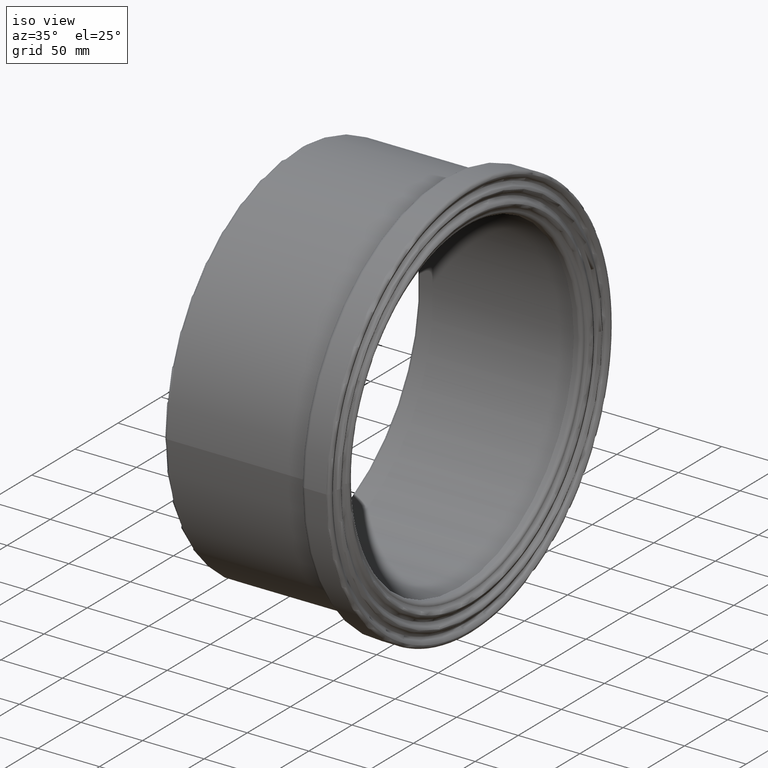
[diagram: clean part render]
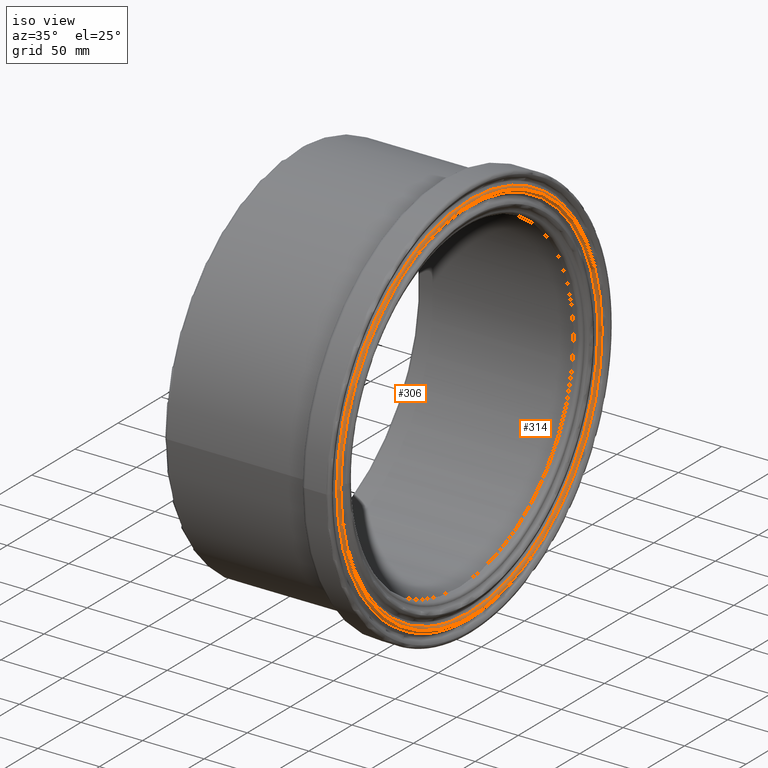
[diagram: same view with one multi-face feature highlighted, each face labeled with its STEP entity id]
A machine part, iso view. The highlighted faces form ONE feature: a constant-radius fillet chain: 2 tangent blend faces with common blend radius 2.8 mm. The faces share edges in the B-rep.
Their STEP definitions:
[1] entity #306 (Torus):
#30=B_SPLINE_CURVE_WITH_KNOTS('',3,(#1836,#1837,#1838,#1839,#1840,#1841,
#1842,#1843,#1844,#1845,#1846,#1847,#1848,#1849,#1850,#1851,#1852,#1853,
#1854,#1855,#1856,#1857,#1858,#1859,#1860,#1861,#1862,#1863,#1864,#1865,
#1866,#1867,#1868,#1869,#1870,#1871,#1872,#1873,#1874,#1875,#1876,#1877,
#1878,#1879,#1880,#1881,#1882,#1883,#1884,#1885,#1886,#1887,#1888,#1889,
#1890,#1891,#1892,#1893,#1894,#1895,#1896,#1897,#1898),.UNSPECIFIED.,.T.,
 .F.,(4,1,1,1,1,1,1,1,1,1,1,1,1,1,1,1,1,1,1,1,1,1,1,1,1,1,1,1,1,1,1,1,1,
1,1,1,1,1,1,1,1,1,1,1,1,1,1,1,1,1,1,1,1,1,1,1,1,1,1,1,4),(-48.8331298808283,
-48.3971197926066,-47.5250996161633,-47.0890895279416,-45.3450491750549,
-43.6010088221681,-42.2929785575031,-41.9659709913368,-41.8569684692814,
-38.3688877635079,-36.6248474106212,-35.9708322782887,-35.3168171459562,
-34.8808070577345,-32.5554199205522,-30.2300327833699,-28.4859924304832,
-27.323298861892,-25.5792585090053,-24.4165649404141,-23.253871371823,-21.5098310189363,
-20.9284842346407,-19.7657906660495,-19.0391071856801,-18.6030970974584,
-15.6963631759805,-13.9523228230938,-11.6269356859115,-10.7549155094681,
-9.3015485487292,-8.72020176443362,-6.9761614115469,-5.81346784295575,-2.3253871371823,
-1.16269356859115,1.16269356859115,2.3253871371823,4.6507742743646,6.9761614115469,
11.6269356859115,12.7896292545027,13.9523228230938,16.2777099602761,17.4404035288673,
18.6030970974584,20.9284842346407,23.253871371823,25.5792585090053,29.0673392147787,
30.2300327833699,31.7802908748248,34.8808070577345,36.6248474106212,38.3688877635079,
40.1129281163947,41.8569684692814,43.6010088221681,45.3450491750549,47.0890895279416,
48.8331298808283),.UNSPECIFIED.);
#50=FACE_BOUND('',#111,.T.);
#75=FACE_OUTER_BOUND('',#110,.T.);
#110=EDGE_LOOP('',(#249));
#111=EDGE_LOOP('',(#250));
#149=CIRCLE('',#342,151.55);
#174=VERTEX_POINT('',#1834);
#175=VERTEX_POINT('',#1900);
#204=EDGE_CURVE('',#174,#174,#30,.T.);
#205=EDGE_CURVE('',#175,#175,#149,.T.);
#249=ORIENTED_EDGE('',*,*,#205,.F.);
#250=ORIENTED_EDGE('',*,*,#204,.F.);
#288=TOROIDAL_SURFACE('',#341,151.2,2.8);
#306=ADVANCED_FACE('',(#75,#50),#288,.T.);
#341=AXIS2_PLACEMENT_3D('',#1899,#404,#405);
#342=AXIS2_PLACEMENT_3D('',#1901,#406,#407);
#404=DIRECTION('center_axis',(-1.,0.,0.));
#405=DIRECTION('ref_axis',(0.,-1.,-6.12323399573677E-17));
#406=DIRECTION('center_axis',(1.,0.,0.));
#407=DIRECTION('ref_axis',(0.,1.,6.12323399573677E-17));
#1834=CARTESIAN_POINT('',(140.285980561691,-153.789903497329,0.12485113096353));
#1836=CARTESIAN_POINT('Ctrl Pts',(140.285980561691,-153.790032869069,0.128230636270655));
#1837=CARTESIAN_POINT('Ctrl Pts',(140.285980561691,-153.78878626266,1.55995568260425));
#1838=CARTESIAN_POINT('Ctrl Pts',(140.285980561691,-153.725017197412,5.85487721374721));
#1839=CARTESIAN_POINT('Ctrl Pts',(140.285980561691,-153.398669786454,11.60993103641));
#1840=CARTESIAN_POINT('Ctrl Pts',(140.285980561691,-152.402129337626,21.6459499896712));
#1841=CARTESIAN_POINT('Ctrl Pts',(140.285980561691,-150.209215102565,34.4828807381824));
#1842=CARTESIAN_POINT('Ctrl Pts',(140.285980561691,-145.794112598124,49.7109548890568));
#1843=CARTESIAN_POINT('Ctrl Pts',(140.285980561691,-141.690156647611,59.997243092402));
#1844=CARTESIAN_POINT('Ctrl Pts',(140.285980561691,-139.279565473801,65.2230793858889));
#1845=CARTESIAN_POINT('Ctrl Pts',(140.285980561691,-133.70458059635,76.898449469074));
#1846=CARTESIAN_POINT('Ctrl Pts',(140.285980561691,-124.16935245826,92.0111212729027));
#1847=CARTESIAN_POINT('Ctrl Pts',(140.285980561691,-111.252482556938,106.410800668203));
#1848=CARTESIAN_POINT('Ctrl Pts',(140.285980561691,-104.003687481247,113.352904307182));
#1849=CARTESIAN_POINT('Ctrl Pts',(140.285980561691,-99.6708423552335,117.160100758107));
#1850=CARTESIAN_POINT('Ctrl Pts',(140.285980561691,-90.9467166824033,124.312867440558));
#1851=CARTESIAN_POINT('Ctrl Pts',(140.285980561691,-76.932325118488,133.824615806391));
#1852=CARTESIAN_POINT('Ctrl Pts',(140.285980561691,-57.9903730520915,142.910979450752));
#1853=CARTESIAN_POINT('Ctrl Pts',(140.285980561691,-41.5372031098528,148.313260661025));
#1854=CARTESIAN_POINT('Ctrl Pts',(140.285980561691,-26.5051116149595,151.72102457137));
#1855=CARTESIAN_POINT('Ctrl Pts',(140.285980561691,-13.1564552910579,153.45248302182));
#1856=CARTESIAN_POINT('Ctrl Pts',(140.285980561691,0.177378198502902,153.931558067019));
#1857=CARTESIAN_POINT('Ctrl Pts',(140.285980561691,13.6060913563931,153.417199342379));
#1858=CARTESIAN_POINT('Ctrl Pts',(140.285980561691,25.0744862608331,151.890464420584));
#1859=CARTESIAN_POINT('Ctrl Pts',(140.285980561691,36.3657837727631,149.515122710635));
#1860=CARTESIAN_POINT('Ctrl Pts',(140.285980561691,44.2478961396712,147.387497255366));
#1861=CARTESIAN_POINT('Ctrl Pts',(140.285980561691,51.4875046093276,144.953124304982));
#1862=CARTESIAN_POINT('Ctrl Pts',(140.285980561691,63.9759168714091,140.234618520262));
#1863=CARTESIAN_POINT('Ctrl Pts',(140.285980561691,79.0764704269614,132.596146027678));
#1864=CARTESIAN_POINT('Ctrl Pts',(140.285980561691,97.8991927168441,119.173482582442));
#1865=CARTESIAN_POINT('Ctrl Pts',(140.285980561691,109.769656657097,108.123833145999));
#1866=CARTESIAN_POINT('Ctrl Pts',(140.285980561691,119.904348319621,96.5400583785807));
#1867=CARTESIAN_POINT('Ctrl Pts',(140.285980561691,125.678850341421,88.8385799744515));
#1868=CARTESIAN_POINT('Ctrl Pts',(140.285980561691,132.512129816817,78.3574157002596));
#1869=CARTESIAN_POINT('Ctrl Pts',(140.285980561691,138.047504333441,68.2902625774692));
#1870=CARTESIAN_POINT('Ctrl Pts',(140.285980561691,146.420230617934,49.0148704074118));
#1871=CARTESIAN_POINT('Ctrl Pts',(140.285980561691,151.375213096368,30.4557028337687));
#1872=CARTESIAN_POINT('Ctrl Pts',(140.285980561691,153.933189939119,7.64750781255766));
#1873=CARTESIAN_POINT('Ctrl Pts',(140.285980561691,153.929353309494,-7.63968224149313));
#1874=CARTESIAN_POINT('Ctrl Pts',(140.285980561691,151.798787741713,-26.7426186863813));
#1875=CARTESIAN_POINT('Ctrl Pts',(140.285980561691,147.467416790075,-45.5912672869851));
#1876=CARTESIAN_POINT('Ctrl Pts',(140.285980561691,136.320571484894,-74.0498976541371));
#1877=CARTESIAN_POINT('Ctrl Pts',(140.285980561691,120.90385653703,-96.6836898654442));
#1878=CARTESIAN_POINT('Ctrl Pts',(140.285980561691,104.697704284632,-112.8302781223));
#1879=CARTESIAN_POINT('Ctrl Pts',(140.285980561691,93.0683377561068,-122.867581159138));
#1880=CARTESIAN_POINT('Ctrl Pts',(140.285980561691,80.2902418749382,-131.557973634984));
#1881=CARTESIAN_POINT('Ctrl Pts',(140.285980561691,66.6995422484529,-138.732524451067));
#1882=CARTESIAN_POINT('Ctrl Pts',(140.285980561691,52.7245384427721,-144.819470134023));
#1883=CARTESIAN_POINT('Ctrl Pts',(140.285980561691,34.3008384198665,-150.519156182648));
#1884=CARTESIAN_POINT('Ctrl Pts',(140.285980561691,11.3928976875798,-153.933928716728));
#1885=CARTESIAN_POINT('Ctrl Pts',(140.285980561691,-15.3447874856942,-153.938175192372));
#1886=CARTESIAN_POINT('Ctrl Pts',(140.285980561691,-38.2955646810749,-149.59577864632));
#1887=CARTESIAN_POINT('Ctrl Pts',(140.285980561692,-57.5210657416421,-142.831208504604));
#1888=CARTESIAN_POINT('Ctrl Pts',(140.285980561691,-74.9641372830207,-134.973289624955));
#1889=CARTESIAN_POINT('Ctrl Pts',(140.285980561691,-92.9039928918147,-123.361657038343));
#1890=CARTESIAN_POINT('Ctrl Pts',(140.285980561691,-109.030870761056,-108.909215964235));
#1891=CARTESIAN_POINT('Ctrl Pts',(140.285980561691,-120.532414711667,-96.0409491017326));
#1892=CARTESIAN_POINT('Ctrl Pts',(140.285980561691,-130.581321617401,-81.8546528218272));
#1893=CARTESIAN_POINT('Ctrl Pts',(140.285980561691,-138.918664219418,-66.7193389617188));
#1894=CARTESIAN_POINT('Ctrl Pts',(140.285980561691,-145.483662611211,-50.8396604137697));
#1895=CARTESIAN_POINT('Ctrl Pts',(140.285980561691,-150.285517258246,-34.1610797014645));
#1896=CARTESIAN_POINT('Ctrl Pts',(140.285980561691,-153.16468018843,-17.0551750702155));
#1897=CARTESIAN_POINT('Ctrl Pts',(140.285980561691,-153.795019294706,-5.59866954906367));
#1898=CARTESIAN_POINT('Ctrl Pts',(140.285980561691,-153.790032869069,0.128230636270655));
#1899=CARTESIAN_POINT('Origin',(139.221961123382,0.,0.));
#1900=CARTESIAN_POINT('',(142.,-151.55,-2.78392833616172E-14));
#1901=CARTESIAN_POINT('Origin',(142.,0.,0.));
[2] entity #314 (Torus):
#33=B_SPLINE_CURVE_WITH_KNOTS('',3,(#2684,#2685,#2686,#2687,#2688,#2689,
#2690,#2691,#2692,#2693,#2694,#2695,#2696,#2697,#2698,#2699,#2700,#2701,
#2702,#2703,#2704,#2705,#2706,#2707,#2708,#2709,#2710,#2711,#2712,#2713,
#2714,#2715,#2716,#2717,#2718,#2719,#2720,#2721,#2722,#2723,#2724,#2725,
#2726,#2727,#2728,#2729,#2730,#2731,#2732,#2733,#2734,#2735,#2736,#2737,
#2738,#2739,#2740,#2741,#2742,#2743,#2744,#2745,#2746,#2747,#2748,#2749,
#2750,#2751),.UNSPECIFIED.,.T.,.F.,(4,1,1,1,1,1,1,1,1,1,1,1,1,1,1,1,1,1,
1,1,1,1,1,1,1,1,1,1,1,1,1,1,1,1,1,1,1,1,1,1,1,1,1,1,1,1,1,1,1,1,1,1,1,1,
1,1,1,1,1,1,1,1,1,1,1,4),(45.7101747594697,47.3426810008793,48.975187242289,
50.6076934836986,52.2401997251082,55.5052122079275,57.1377184493371,58.7702246907468,
60.9468996792929,63.1235746678391,67.4769246449315,68.5652621392045,69.6535996334776,
71.8302746220238,73.2813912810546,74.7325079400854,76.1836245991162,78.3602995876623,
79.4486370819354,80.5369745762085,82.7136495647547,84.8903245533009,85.978662047574,
88.1553370361201,89.2436745303932,92.2366026396442,92.5086870132125,93.5970245074856,
95.7736994960318,96.3178682431683,96.7259948035207,97.1341213638731,97.9503744845779,
101.215386967397,102.745861568719,104.480399450216,104.684462730393,105.296652570921,
107.745411933036,109.377918174445,111.010424415855,111.418550976207,112.642930657265,
114.275436898674,114.887626739203,115.499816579731,117.540449381494,117.812533755062,
118.628786875767,119.445039996471,120.805461864313,121.077546237881,121.893799358586,
124.070474347132,125.294854028189,126.519233709247,126.723296989423,127.335486829951,
128.967993071361,130.600499312771,131.008625873123,132.23300555418,133.86551179559,
135.498018036999,135.906144597352,137.130524278409),.UNSPECIFIED.);
#56=FACE_BOUND('',#125,.T.);
#83=FACE_OUTER_BOUND('',#124,.T.);
#124=EDGE_LOOP('',(#269));
#125=EDGE_LOOP('',(#270));
#149=CIRCLE('',#342,151.55);
#175=VERTEX_POINT('',#1900);
#183=VERTEX_POINT('',#2682);
#205=EDGE_CURVE('',#175,#175,#149,.T.);
#215=EDGE_CURVE('',#183,#183,#33,.T.);
#269=ORIENTED_EDGE('',*,*,#215,.F.);
#270=ORIENTED_EDGE('',*,*,#205,.T.);
#291=TOROIDAL_SURFACE('',#355,151.55,2.8);
#314=ADVANCED_FACE('',(#83,#56),#291,.T.);
#342=AXIS2_PLACEMENT_3D('',#1901,#406,#407);
#355=AXIS2_PLACEMENT_3D('',#2752,#432,#433);
#406=DIRECTION('center_axis',(1.,0.,0.));
#407=DIRECTION('ref_axis',(0.,1.,6.12323399573677E-17));
#432=DIRECTION('center_axis',(-1.,0.,0.));
#433=DIRECTION('ref_axis',(0.,0.,1.));
#1900=CARTESIAN_POINT('',(142.,-151.55,-2.78392833616172E-14));
#1901=CARTESIAN_POINT('Origin',(142.,0.,0.));
#2682=CARTESIAN_POINT('',(140.275,-148.964535083942,-0.120933756090324));
#2684=CARTESIAN_POINT('Ctrl Pts',(140.275,-148.964568837677,-0.122809859819948));
#2685=CARTESIAN_POINT('Ctrl Pts',(140.275000000001,-148.959557337798,-5.6737490385498));
#2686=CARTESIAN_POINT('Ctrl Pts',(140.275,-148.329154383102,-16.8156366137907));
#2687=CARTESIAN_POINT('Ctrl Pts',(140.275,-145.495542150607,-33.4109901602212));
#2688=CARTESIAN_POINT('Ctrl Pts',(140.275,-140.83209741711,-49.4763490972255));
#2689=CARTESIAN_POINT('Ctrl Pts',(140.275,-132.332258570456,-69.9861467209144));
#2690=CARTESIAN_POINT('Ctrl Pts',(140.275,-120.272677425517,-89.1363754874114));
#2691=CARTESIAN_POINT('Ctrl Pts',(140.275,-105.448641893171,-105.645666224272));
#2692=CARTESIAN_POINT('Ctrl Pts',(140.275,-91.5834666346418,-118.04803833079));
#2693=CARTESIAN_POINT('Ctrl Pts',(140.275,-74.5137704519196,-129.618103905606));
#2694=CARTESIAN_POINT('Ctrl Pts',(140.275000000001,-47.8418304201663,-142.447293216622));
#2695=CARTESIAN_POINT('Ctrl Pts',(140.275,-21.9781446091969,-148.331383081598));
#2696=CARTESIAN_POINT('Ctrl Pts',(140.275,0.17569125471072,-149.093965084313));
#2697=CARTESIAN_POINT('Ctrl Pts',(140.275,15.0302323383013,-148.542430879075));
#2698=CARTESIAN_POINT('Ctrl Pts',(140.275,31.0831496305879,-146.084064521674));
#2699=CARTESIAN_POINT('Ctrl Pts',(140.275,47.761113360919,-141.360118065136));
#2700=CARTESIAN_POINT('Ctrl Pts',(140.275,61.5246078011976,-135.934057709607));
#2701=CARTESIAN_POINT('Ctrl Pts',(140.275,77.0176859108486,-127.975890683011));
#2702=CARTESIAN_POINT('Ctrl Pts',(140.275,90.3891600101355,-118.812994552106));
#2703=CARTESIAN_POINT('Ctrl Pts',(140.275,101.589423818671,-109.136520092809));
#2704=CARTESIAN_POINT('Ctrl Pts',(140.275,112.053079344598,-98.6499394785924));
#2705=CARTESIAN_POINT('Ctrl Pts',(140.275,123.715805567051,-83.9797310582637));
#2706=CARTESIAN_POINT('Ctrl Pts',(140.275,132.983182507665,-67.8362747583498));
#2707=CARTESIAN_POINT('Ctrl Pts',(140.275,140.346631784791,-50.8810507425562));
#2708=CARTESIAN_POINT('Ctrl Pts',(140.275,144.712325337597,-36.678575124272));
#2709=CARTESIAN_POINT('Ctrl Pts',(140.275,148.646430981357,-15.7766080576259));
#2710=CARTESIAN_POINT('Ctrl Pts',(140.275,149.348209020114,-0.903387832956897));
#2711=CARTESIAN_POINT('Ctrl Pts',(140.275,148.376443378545,13.8658411688273));
#2712=CARTESIAN_POINT('Ctrl Pts',(140.275,147.027645229315,25.9176733532363));
#2713=CARTESIAN_POINT('Ctrl Pts',(140.275,144.108954106179,38.6720712557812));
#2714=CARTESIAN_POINT('Ctrl Pts',(140.275,140.766206005444,48.8178903782974));
#2715=CARTESIAN_POINT('Ctrl Pts',(140.275,139.175554855029,53.166362840481));
#2716=CARTESIAN_POINT('Ctrl Pts',(140.275,137.122667310907,58.3128316072751));
#2717=CARTESIAN_POINT('Ctrl Pts',(140.275,130.900895724389,72.2548457582338));
#2718=CARTESIAN_POINT('Ctrl Pts',(140.275,120.561387012157,88.6966642748857));
#2719=CARTESIAN_POINT('Ctrl Pts',(140.275,105.768142706052,105.334485658711));
#2720=CARTESIAN_POINT('Ctrl Pts',(140.275,97.0023974900637,113.229604497792));
#2721=CARTESIAN_POINT('Ctrl Pts',(140.275,90.1260579630258,118.633966514305));
#2722=CARTESIAN_POINT('Ctrl Pts',(140.275,81.1526772744691,125.291454796195));
#2723=CARTESIAN_POINT('Ctrl Pts',(140.275,67.2326753318649,133.479869437641));
#2724=CARTESIAN_POINT('Ctrl Pts',(140.275,49.3142843394213,140.893228739321));
#2725=CARTESIAN_POINT('Ctrl Pts',(140.275,37.1976791375266,144.38913453537));
#2726=CARTESIAN_POINT('Ctrl Pts',(140.275,26.2684626927645,146.716695829714));
#2727=CARTESIAN_POINT('Ctrl Pts',(140.275,15.1988957290237,148.430318012904));
#2728=CARTESIAN_POINT('Ctrl Pts',(140.275,3.40095491426445,149.081832583283));
#2729=CARTESIAN_POINT('Ctrl Pts',(140.275,-6.30044471178975,148.874930940451));
#2730=CARTESIAN_POINT('Ctrl Pts',(140.275,-17.4319997492712,148.170310709189));
#2731=CARTESIAN_POINT('Ctrl Pts',(140.275,-27.3590860473685,146.622610172036));
#2732=CARTESIAN_POINT('Ctrl Pts',(140.275,-37.7769183997336,144.134006166759));
#2733=CARTESIAN_POINT('Ctrl Pts',(140.275,-44.0536563681711,142.383522125114));
#2734=CARTESIAN_POINT('Ctrl Pts',(140.275,-53.7000656006375,139.098955943536));
#2735=CARTESIAN_POINT('Ctrl Pts',(140.275,-61.3489789248997,135.843475730412));
#2736=CARTESIAN_POINT('Ctrl Pts',(140.275,-68.8532979886869,132.139394241535));
#2737=CARTESIAN_POINT('Ctrl Pts',(140.275,-78.6740417127234,126.82911886525));
#2738=CARTESIAN_POINT('Ctrl Pts',(140.275000000001,-90.6587904504441,118.640874635889));
#2739=CARTESIAN_POINT('Ctrl Pts',(140.275,-102.543958756543,108.290865440932));
#2740=CARTESIAN_POINT('Ctrl Pts',(140.275,-108.819681023487,101.830833723749));
#2741=CARTESIAN_POINT('Ctrl Pts',(140.275,-113.429266653896,96.595105790783));
#2742=CARTESIAN_POINT('Ctrl Pts',(140.275,-118.781984900923,90.1583935287654));
#2743=CARTESIAN_POINT('Ctrl Pts',(140.275,-126.47729856515,79.2983925045487));
#2744=CARTESIAN_POINT('Ctrl Pts',(140.275,-132.546074734823,68.2818475815062));
#2745=CARTESIAN_POINT('Ctrl Pts',(140.275,-137.20547845587,58.2236572419384));
#2746=CARTESIAN_POINT('Ctrl Pts',(140.275,-141.31012030979,47.894366732611));
#2747=CARTESIAN_POINT('Ctrl Pts',(140.275,-145.567555665631,33.0881850162132));
#2748=CARTESIAN_POINT('Ctrl Pts',(140.275,-147.662241526037,20.6680672716691));
#2749=CARTESIAN_POINT('Ctrl Pts',(140.275,-148.740696479363,9.57633024628928));
#2750=CARTESIAN_POINT('Ctrl Pts',(140.275,-148.968327462586,4.04039452422737));
#2751=CARTESIAN_POINT('Ctrl Pts',(140.275,-148.964568837677,-0.122809859819948));
#2752=CARTESIAN_POINT('Origin',(139.2,0.,0.));